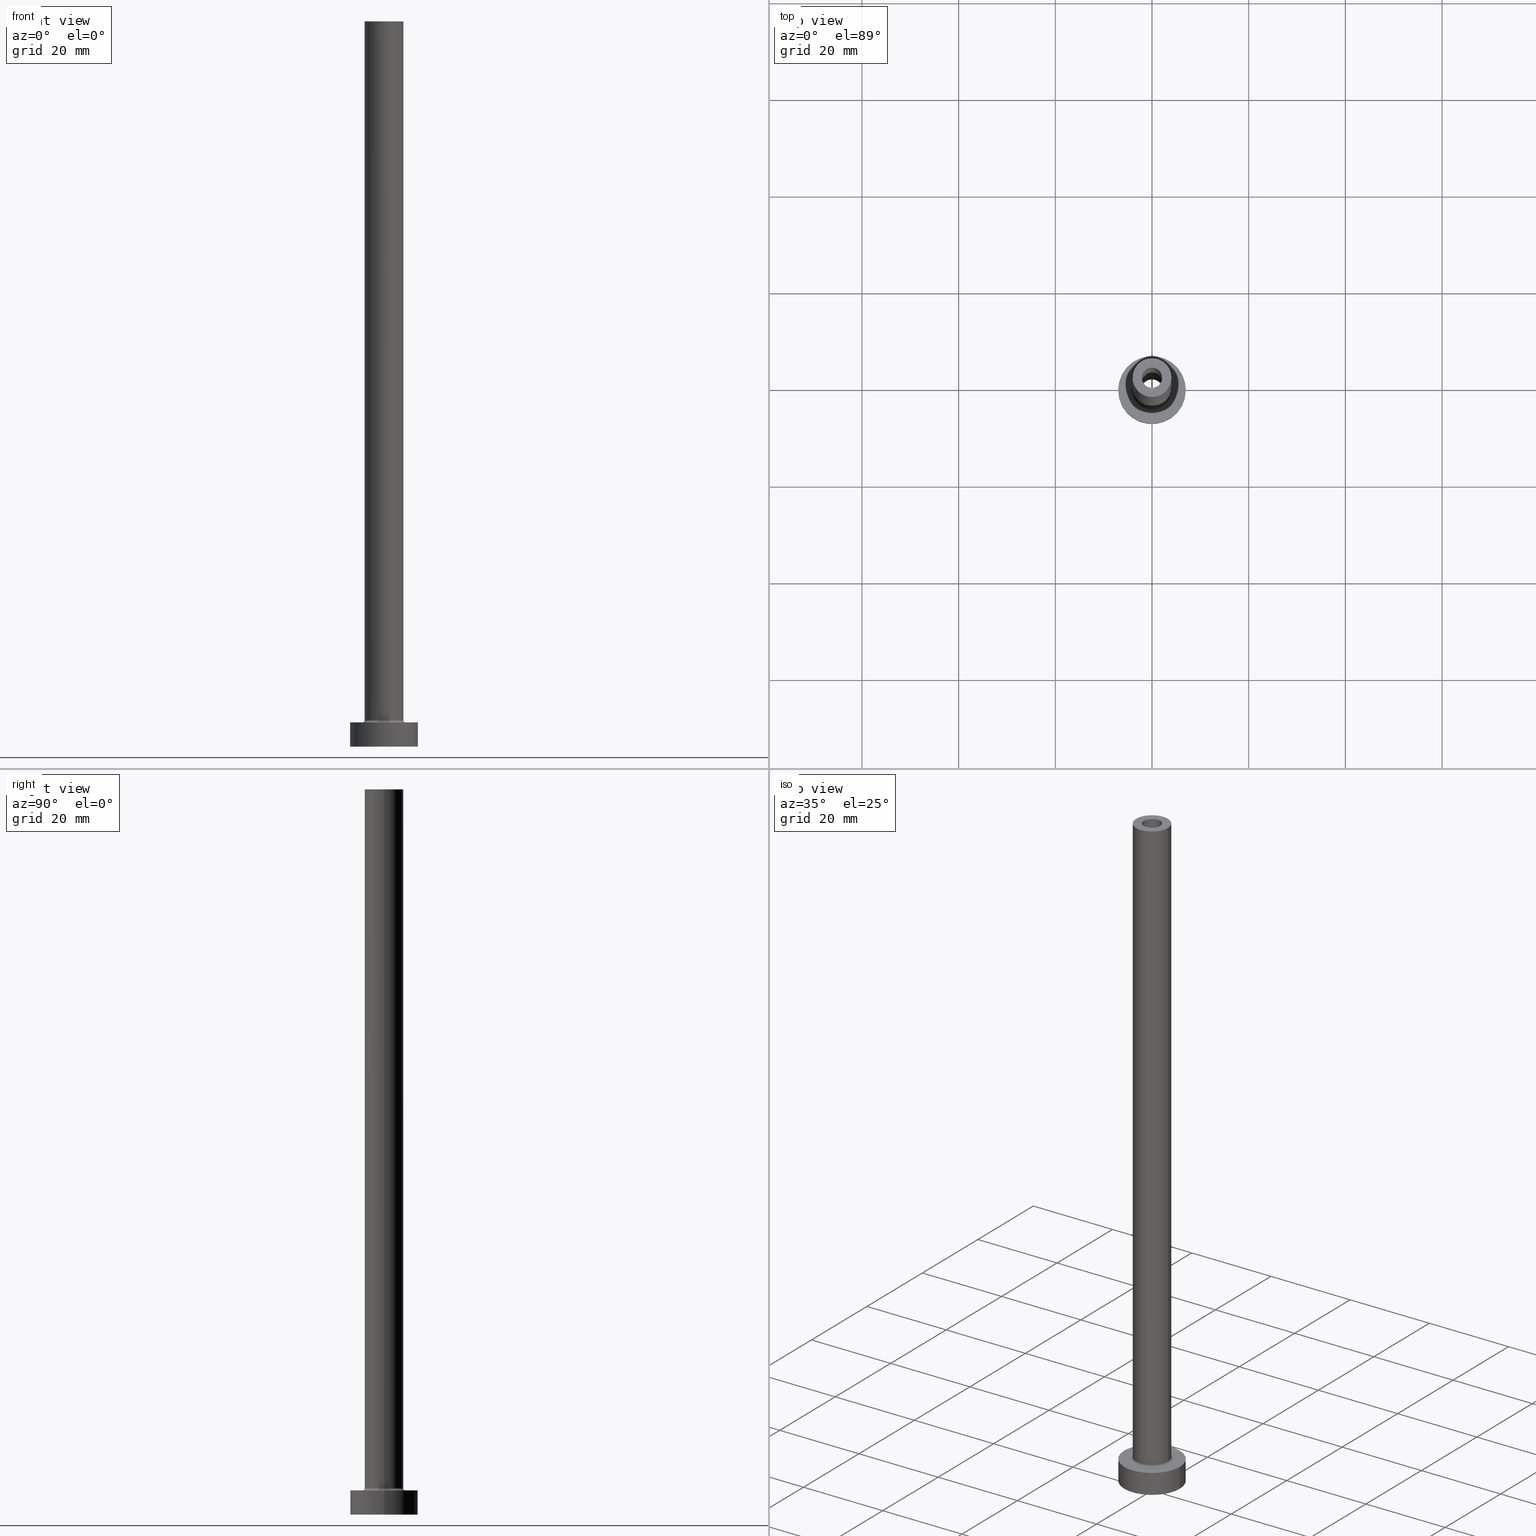
[diagram: canonical four-view strip — front | top / right | iso, engineering-drawing reading convention]
A machine part, canonical four-view strip (front | top / right | iso — engineering-drawing reading convention). The complete STEP part file that produces these views, byte-faithful:
ISO-10303-21;
HEADER;
FILE_DESCRIPTION (( 'STEP AP203' ),
    '1' );
FILE_NAME ('745d.STEP',
    '2023-02-13T11:07:23',
    ( '' ),
    ( '' ),
    'SwSTEP 2.0',
    'SolidWorks 2019',
    '' );
FILE_SCHEMA (( 'CONFIG_CONTROL_DESIGN' ));
ENDSEC;

DATA;
#1 = DATE_TIME_ROLE ( 'classification_date' ) ;
#2 = AXIS2_PLACEMENT_3D ( 'NONE', #166, #381, #138 ) ;
#3 = EDGE_LOOP ( 'NONE', ( #385, #241 ) ) ;
#4 = EDGE_CURVE ( 'NONE', #44, #455, #233, .T. ) ;
#5 = DIRECTION ( 'NONE',  ( 1.000000000000000000, 0.000000000000000000, 0.000000000000000000 ) ) ;
#6 = VERTEX_POINT ( 'NONE', #91 ) ;
#7 =( NAMED_UNIT ( * ) PLANE_ANGLE_UNIT ( ) SI_UNIT ( $, .RADIAN. ) );
#8 = VERTEX_POINT ( 'NONE', #327 ) ;
#9 = CARTESIAN_POINT ( 'NONE',  ( 0.000000000000000000, 0.000000000000000000, 150.0000000000000000 ) ) ;
#10 = CC_DESIGN_DATE_AND_TIME_ASSIGNMENT ( #257, #1, ( #396 ) ) ;
#11 = CIRCLE ( 'NONE', #32, 4.500000000000000888 ) ;
#12 = ADVANCED_FACE ( 'NONE', ( #187, #361 ), #405, .F. ) ;
#13 = FACE_OUTER_BOUND ( 'NONE', #387, .T. ) ;
#14 = ORIENTED_EDGE ( 'NONE', *, *, #232, .F. ) ;
#15 = DIRECTION ( 'NONE',  ( 1.000000000000000000, 0.000000000000000000, 0.000000000000000000 ) ) ;
#16 = FACE_OUTER_BOUND ( 'NONE', #457, .T. ) ;
#17 = DIRECTION ( 'NONE',  ( 0.000000000000000000, 0.000000000000000000, 1.000000000000000000 ) ) ;
#18 = PERSON_AND_ORGANIZATION ( #267, #237 ) ;
#19 = CC_DESIGN_PERSON_AND_ORGANIZATION_ASSIGNMENT ( #270, #341, ( #103 ) ) ;
#20 = AXIS2_PLACEMENT_3D ( 'NONE', #54, #259, #94 ) ;
#21 = DIRECTION ( 'NONE',  ( 1.000000000000000000, 0.000000000000000000, 0.000000000000000000 ) ) ;
#22 = ADVANCED_FACE ( 'NONE', ( #371, #439 ), #369, .T. ) ;
#23 = EDGE_LOOP ( 'NONE', ( #342, #208, #350, #320 ) ) ;
#24 = DIRECTION ( 'NONE',  ( -1.000000000000000000, 0.000000000000000000, 0.000000000000000000 ) ) ;
#25 = CIRCLE ( 'NONE', #57, 4.000000000000000000 ) ;
#26 = CIRCLE ( 'NONE', #137, 2.100000000000000089 ) ;
#27 = APPROVAL_PERSON_ORGANIZATION ( #456, #450, #68 ) ;
#28 = APPROVAL_DATE_TIME ( #132, #302 ) ;
#29 = DIRECTION ( 'NONE',  ( -1.000000000000000000, 1.224646799147351482E-16, 0.000000000000000000 ) ) ;
#30 = ORIENTED_EDGE ( 'NONE', *, *, #135, .T. ) ;
#31 = CIRCLE ( 'NONE', #206, 7.000000000000000000 ) ;
#32 = AXIS2_PLACEMENT_3D ( 'NONE', #125, #255, #86 ) ;
#33 = EDGE_LOOP ( 'NONE', ( #171, #289 ) ) ;
#34 = AXIS2_PLACEMENT_3D ( 'NONE', #309, #454, #274 ) ;
#35 = CARTESIAN_POINT ( 'NONE',  ( -4.000000000000000000, 0.000000000000000000, 5.500000000000005329 ) ) ;
#36 = EDGE_LOOP ( 'NONE', ( #248, #424, #164, #316 ) ) ;
#37 = CARTESIAN_POINT ( 'NONE',  ( -2.100000000000000089, 0.000000000000000000, 150.0000000000000000 ) ) ;
#38 = DIRECTION ( 'NONE',  ( 1.000000000000000000, 0.000000000000000000, -0.000000000000000000 ) ) ;
#39 = EDGE_LOOP ( 'NONE', ( #14, #322, #161, #173 ) ) ;
#40 = EDGE_CURVE ( 'NONE', #64, #382, #31, .T. ) ;
#41 = APPROVAL_DATE_TIME ( #75, #344 ) ;
#42 = APPROVAL_PERSON_ORGANIZATION ( #264, #302, #372 ) ;
#43 =( LENGTH_UNIT ( ) NAMED_UNIT ( * ) SI_UNIT ( .MILLI., .METRE. ) );
#44 = VERTEX_POINT ( 'NONE', #297 ) ;
#45 = DIRECTION ( 'NONE',  ( 0.000000000000000000, 0.000000000000000000, -1.000000000000000000 ) ) ;
#46 = CALENDAR_DATE ( 2023, 13, 2 ) ;
#47 = FACE_OUTER_BOUND ( 'NONE', #389, .T. ) ;
#48 = CYLINDRICAL_SURFACE ( 'NONE', #63, 2.250000000000000000 ) ;
#49 = AXIS2_PLACEMENT_3D ( 'NONE', #375, #58, #172 ) ;
#50 =( GEOMETRIC_REPRESENTATION_CONTEXT ( 3 ) GLOBAL_UNCERTAINTY_ASSIGNED_CONTEXT ( ( #284 ) ) GLOBAL_UNIT_ASSIGNED_CONTEXT ( ( #43, #7, #178 ) ) REPRESENTATION_CONTEXT ( 'NONE', 'WORKASPACE' ) );
#51 = DIRECTION ( 'NONE',  ( -0.000000000000000000, -0.000000000000000000, -1.000000000000000000 ) ) ;
#52 = DIRECTION ( 'NONE',  ( -0.000000000000000000, -0.000000000000000000, -1.000000000000000000 ) ) ;
#53 = ORIENTED_EDGE ( 'NONE', *, *, #321, .T. ) ;
#54 = CARTESIAN_POINT ( 'NONE',  ( 0.000000000000000000, 0.000000000000000000, 150.0000000000000000 ) ) ;
#55 = ORIENTED_EDGE ( 'NONE', *, *, #160, .F. ) ;
#56 = AXIS2_PLACEMENT_3D ( 'NONE', #180, #408, #152 ) ;
#57 = AXIS2_PLACEMENT_3D ( 'NONE', #214, #179, #5 ) ;
#58 = DIRECTION ( 'NONE',  ( 0.000000000000000000, -1.000000000000000000, 0.000000000000000000 ) ) ;
#59 = DIRECTION ( 'NONE',  ( -1.000000000000000000, 0.000000000000000000, 0.000000000000000000 ) ) ;
#60 = EDGE_CURVE ( 'NONE', #455, #44, #11, .T. ) ;
#61 = VERTEX_POINT ( 'NONE', #93 ) ;
#62 = DIRECTION ( 'NONE',  ( 0.000000000000000000, 0.000000000000000000, -1.000000000000000000 ) ) ;
#63 = AXIS2_PLACEMENT_3D ( 'NONE', #402, #245, #85 ) ;
#64 = VERTEX_POINT ( 'NONE', #191 ) ;
#65 = EDGE_CURVE ( 'NONE', #261, #8, #290, .T. ) ;
#66 = LINE ( 'NONE', #165, #292 ) ;
#67 = FACE_OUTER_BOUND ( 'NONE', #33, .T. ) ;
#68 = APPROVAL_ROLE ( '' ) ;
#69 = ORIENTED_EDGE ( 'NONE', *, *, #273, .T. ) ;
#70 = CARTESIAN_POINT ( 'NONE',  ( 0.000000000000000000, 0.000000000000000000, 150.0000000000000000 ) ) ;
#71 = ORIENTED_EDGE ( 'NONE', *, *, #356, .T. ) ;
#72 = DIRECTION ( 'NONE',  ( 1.000000000000000000, 0.000000000000000000, 0.000000000000000000 ) ) ;
#73 = VERTEX_POINT ( 'NONE', #84 ) ;
#74 = CARTESIAN_POINT ( 'NONE',  ( 0.000000000000000000, 0.000000000000000000, 150.0000000000000000 ) ) ;
#75 = DATE_AND_TIME ( #388, #283 ) ;
#76 = ORIENTED_EDGE ( 'NONE', *, *, #379, .F. ) ;
#77 = PERSON_AND_ORGANIZATION_ROLE ( 'creator' ) ;
#78 = VERTEX_POINT ( 'NONE', #258 ) ;
#79 = ADVANCED_FACE ( 'NONE', ( #329 ), #183, .T. ) ;
#80 = LOCAL_TIME ( 12, 7, 23.00000000000000000, #453 ) ;
#81 = CARTESIAN_POINT ( 'NONE',  ( 0.000000000000000000, 0.000000000000000000, 0.000000000000000000 ) ) ;
#82 = CC_DESIGN_PERSON_AND_ORGANIZATION_ASSIGNMENT ( #18, #157, ( #277 ) ) ;
#83 = APPROVAL_DATE_TIME ( #399, #450 ) ;
#84 = CARTESIAN_POINT ( 'NONE',  ( -4.000000000000000000, 0.000000000000000000, 150.0000000000000000 ) ) ;
#85 = DIRECTION ( 'NONE',  ( -1.000000000000000000, 0.000000000000000000, 0.000000000000000000 ) ) ;
#86 = DIRECTION ( 'NONE',  ( 1.000000000000000000, 0.000000000000000000, 0.000000000000000000 ) ) ;
#87 = LINE ( 'NONE', #435, #433 ) ;
#88 = VECTOR ( 'NONE', #431, 1000.000000000000000 ) ;
#89 = VECTOR ( 'NONE', #123, 1000.000000000000000 ) ;
#90 = ADVANCED_FACE ( 'NONE', ( #278, #67 ), #423, .T. ) ;
#91 = CARTESIAN_POINT ( 'NONE',  ( -2.100000000000000089, 0.000000000000000000, 105.0000000000000000 ) ) ;
#92 = CYLINDRICAL_SURFACE ( 'NONE', #20, 2.100000000000000089 ) ;
#93 = CARTESIAN_POINT ( 'NONE',  ( 4.000000000000000000, 4.898587196589412829E-16, 150.0000000000000000 ) ) ;
#94 = DIRECTION ( 'NONE',  ( -1.000000000000000000, 0.000000000000000000, 0.000000000000000000 ) ) ;
#95 = DIRECTION ( 'NONE',  ( -1.000000000000000000, 0.000000000000000000, 0.000000000000000000 ) ) ;
#96 = EDGE_CURVE ( 'NONE', #133, #455, #129, .T. ) ;
#97 = CC_DESIGN_APPROVAL ( #302, ( #103 ) ) ;
#98 = ORIENTED_EDGE ( 'NONE', *, *, #135, .F. ) ;
#99 = DIRECTION ( 'NONE',  ( 1.000000000000000000, 0.000000000000000000, 0.000000000000000000 ) ) ;
#100 = VECTOR ( 'NONE', #107, 1000.000000000000000 ) ;
#101 = COORDINATED_UNIVERSAL_TIME_OFFSET ( 1, 0, .AHEAD. ) ;
#102 = DESIGN_CONTEXT ( 'detailed design', #365, 'design' ) ;
#103 = PRODUCT_DEFINITION ( 'NEZN�M�', '', #224, #102 ) ;
#104 = DIRECTION ( 'NONE',  ( -0.000000000000000000, -0.000000000000000000, -1.000000000000000000 ) ) ;
#105 = ORIENTED_EDGE ( 'NONE', *, *, #422, .F. ) ;
#106 = ADVANCED_FACE ( 'NONE', ( #201 ), #384, .T. ) ;
#107 = DIRECTION ( 'NONE',  ( 0.000000000000000000, 0.000000000000000000, -1.000000000000000000 ) ) ;
#108 = ORIENTED_EDGE ( 'NONE', *, *, #60, .T. ) ;
#109 = CC_DESIGN_APPROVAL ( #450, ( #224 ) ) ;
#110 = FACE_OUTER_BOUND ( 'NONE', #291, .T. ) ;
#111 = ORIENTED_EDGE ( 'NONE', *, *, #4, .F. ) ;
#112 = EDGE_CURVE ( 'NONE', #360, #44, #156, .T. ) ;
#113 = ORIENTED_EDGE ( 'NONE', *, *, #4, .T. ) ;
#114 = VERTEX_POINT ( 'NONE', #425 ) ;
#115 = CARTESIAN_POINT ( 'NONE',  ( -2.250000000000000000, 0.000000000000000000, 0.000000000000000000 ) ) ;
#116 = CARTESIAN_POINT ( 'NONE',  ( 0.000000000000000000, 0.000000000000000000, 0.000000000000000000 ) ) ;
#117 = FACE_OUTER_BOUND ( 'NONE', #36, .T. ) ;
#118 = DIRECTION ( 'NONE',  ( 0.000000000000000000, 0.000000000000000000, 1.000000000000000000 ) ) ;
#119 = COORDINATED_UNIVERSAL_TIME_OFFSET ( 1, 0, .AHEAD. ) ;
#120 = ORIENTED_EDGE ( 'NONE', *, *, #65, .F. ) ;
#121 = CARTESIAN_POINT ( 'NONE',  ( 2.100000000000000089, 2.571758278209441464E-16, 150.0000000000000000 ) ) ;
#122 = ADVANCED_FACE ( 'NONE', ( #461 ), #310, .F. ) ;
#123 = DIRECTION ( 'NONE',  ( -0.000000000000000000, -0.000000000000000000, -1.000000000000000000 ) ) ;
#124 = LOCAL_TIME ( 12, 7, 23.00000000000000000, #101 ) ;
#125 = CARTESIAN_POINT ( 'NONE',  ( 0.000000000000000000, 0.000000000000000000, 5.000000000000000000 ) ) ;
#126 = LINE ( 'NONE', #437, #312 ) ;
#127 = DIRECTION ( 'NONE',  ( -0.000000000000000000, -0.000000000000000000, -1.000000000000000000 ) ) ;
#128 = EDGE_CURVE ( 'NONE', #114, #351, #192, .T. ) ;
#129 = CIRCLE ( 'NONE', #234, 0.5000000000000004441 ) ;
#130 = AXIS2_PLACEMENT_3D ( 'NONE', #151, #225, #193 ) ;
#131 = ADVANCED_BREP_SHAPE_REPRESENTATION ( '745d', ( #147, #300 ), #50 ) ;
#132 = DATE_AND_TIME ( #202, #80 ) ;
#133 = VERTEX_POINT ( 'NONE', #35 ) ;
#134 = DIRECTION ( 'NONE',  ( 0.000000000000000000, 0.000000000000000000, 1.000000000000000000 ) ) ;
#135 = EDGE_CURVE ( 'NONE', #346, #8, #417, .T. ) ;
#136 = CIRCLE ( 'NONE', #215, 2.100000000000000089 ) ;
#137 = AXIS2_PLACEMENT_3D ( 'NONE', #271, #306, #197 ) ;
#138 = DIRECTION ( 'NONE',  ( -1.000000000000000000, 0.000000000000000000, 0.000000000000000000 ) ) ;
#139 = ORIENTED_EDGE ( 'NONE', *, *, #112, .F. ) ;
#140 = PERSON_AND_ORGANIZATION ( #267, #237 ) ;
#141 = EDGE_LOOP ( 'NONE', ( #222, #148 ) ) ;
#142 = EDGE_CURVE ( 'NONE', #351, #114, #251, .T. ) ;
#143 = ORIENTED_EDGE ( 'NONE', *, *, #321, .F. ) ;
#144 = ORIENTED_EDGE ( 'NONE', *, *, #356, .F. ) ;
#145 = CARTESIAN_POINT ( 'NONE',  ( -4.000000000000000000, 0.000000000000000000, 150.0000000000000000 ) ) ;
#146 = CLOSED_SHELL ( 'NONE', ( #246, #403, #307, #414, #106, #79, #22, #332, #288, #90, #268, #204, #12, #122 ) ) ;
#147 = MANIFOLD_SOLID_BREP ( 'Odebrat vysunut�m4', #146 ) ;
#148 = ORIENTED_EDGE ( 'NONE', *, *, #349, .F. ) ;
#149 = CARTESIAN_POINT ( 'NONE',  ( 0.000000000000000000, 0.000000000000000000, 111.3639610306789223 ) ) ;
#150 = CC_DESIGN_SECURITY_CLASSIFICATION ( #396, ( #224 ) ) ;
#151 = CARTESIAN_POINT ( 'NONE',  ( 0.000000000000000000, 0.000000000000000000, 5.500000000000005329 ) ) ;
#152 = DIRECTION ( 'NONE',  ( 1.000000000000000000, 0.000000000000000000, 0.000000000000000000 ) ) ;
#153 = ORIENTED_EDGE ( 'NONE', *, *, #226, .F. ) ;
#154 = CC_DESIGN_DATE_AND_TIME_ASSIGNMENT ( #311, #420, ( #103 ) ) ;
#155 = DIRECTION ( 'NONE',  ( -0.000000000000000000, -0.000000000000000000, -1.000000000000000000 ) ) ;
#156 = CIRCLE ( 'NONE', #49, 0.5000000000000004441 ) ;
#157 = PERSON_AND_ORGANIZATION_ROLE ( 'design_owner' ) ;
#158 = AXIS2_PLACEMENT_3D ( 'NONE', #442, #263, #407 ) ;
#159 = ORIENTED_EDGE ( 'NONE', *, *, #182, .F. ) ;
#160 = EDGE_CURVE ( 'NONE', #382, #64, #357, .T. ) ;
#161 = ORIENTED_EDGE ( 'NONE', *, *, #422, .T. ) ;
#162 = AXIS2_PLACEMENT_3D ( 'NONE', #272, #347, #21 ) ;
#163 = CARTESIAN_POINT ( 'NONE',  ( 0.000000000000000000, 0.000000000000000000, 150.0000000000000000 ) ) ;
#164 = ORIENTED_EDGE ( 'NONE', *, *, #112, .T. ) ;
#165 = CARTESIAN_POINT ( 'NONE',  ( -2.100000000000000089, 0.000000000000000000, 150.0000000000000000 ) ) ;
#166 = CARTESIAN_POINT ( 'NONE',  ( 0.000000000000000000, 0.000000000000000000, 5.000000000000000000 ) ) ;
#167 = CALENDAR_DATE ( 2023, 13, 2 ) ;
#168 = ORIENTED_EDGE ( 'NONE', *, *, #65, .T. ) ;
#169 = AXIS2_PLACEMENT_3D ( 'NONE', #220, #325, #189 ) ;
#170 = EDGE_LOOP ( 'NONE', ( #308, #440 ) ) ;
#171 = ORIENTED_EDGE ( 'NONE', *, *, #199, .T. ) ;
#172 = DIRECTION ( 'NONE',  ( 0.000000000000000000, 0.000000000000000000, -1.000000000000000000 ) ) ;
#173 = ORIENTED_EDGE ( 'NONE', *, *, #40, .T. ) ;
#174 = DIRECTION ( 'NONE',  ( 0.000000000000000000, 0.000000000000000000, 1.000000000000000000 ) ) ;
#175 = ORIENTED_EDGE ( 'NONE', *, *, #443, .T. ) ;
#176 = EDGE_CURVE ( 'NONE', #334, #239, #395, .T. ) ;
#177 = EDGE_LOOP ( 'NONE', ( #446, #426, #153, #211 ) ) ;
#178 =( NAMED_UNIT ( * ) SI_UNIT ( $, .STERADIAN. ) SOLID_ANGLE_UNIT ( ) );
#179 = DIRECTION ( 'NONE',  ( 0.000000000000000000, 0.000000000000000000, 1.000000000000000000 ) ) ;
#180 = CARTESIAN_POINT ( 'NONE',  ( 0.000000000000000000, 0.000000000000000000, 5.000000000000000000 ) ) ;
#181 = LINE ( 'NONE', #368, #89 ) ;
#182 = EDGE_CURVE ( 'NONE', #133, #360, #25, .T. ) ;
#183 = CYLINDRICAL_SURFACE ( 'NONE', #2, 7.000000000000000000 ) ;
#184 = AXIS2_PLACEMENT_3D ( 'NONE', #256, #51, #15 ) ;
#185 = FACE_OUTER_BOUND ( 'NONE', #177, .T. ) ;
#186 = PERSON_AND_ORGANIZATION ( #267, #237 ) ;
#187 = FACE_BOUND ( 'NONE', #3, .T. ) ;
#188 = FACE_BOUND ( 'NONE', #459, .T. ) ;
#189 = DIRECTION ( 'NONE',  ( 1.000000000000000000, 0.000000000000000000, -0.000000000000000000 ) ) ;
#190 = DIRECTION ( 'NONE',  ( 0.000000000000000000, 0.000000000000000000, 1.000000000000000000 ) ) ;
#191 = CARTESIAN_POINT ( 'NONE',  ( -7.000000000000000000, 0.000000000000000000, 0.000000000000000000 ) ) ;
#192 = CIRCLE ( 'NONE', #162, 7.000000000000000000 ) ;
#193 = DIRECTION ( 'NONE',  ( 1.000000000000000000, 0.000000000000000000, 0.000000000000000000 ) ) ;
#194 = CC_DESIGN_PERSON_AND_ORGANIZATION_ASSIGNMENT ( #354, #212, ( #396 ) ) ;
#195 = CC_DESIGN_APPROVAL ( #344, ( #396 ) ) ;
#196 = DIRECTION ( 'NONE',  ( 1.000000000000000000, 0.000000000000000000, 0.000000000000000000 ) ) ;
#197 = DIRECTION ( 'NONE',  ( 1.000000000000000000, 0.000000000000000000, 0.000000000000000000 ) ) ;
#198 = DIRECTION ( 'NONE',  ( 0.000000000000000000, 0.000000000000000000, 1.000000000000000000 ) ) ;
#199 = EDGE_CURVE ( 'NONE', #73, #61, #282, .T. ) ;
#200 = AXIS2_PLACEMENT_3D ( 'NONE', #400, #127, #366 ) ;
#201 = FACE_OUTER_BOUND ( 'NONE', #244, .T. ) ;
#202 = CALENDAR_DATE ( 2023, 13, 2 ) ;
#203 = ORIENTED_EDGE ( 'NONE', *, *, #330, .F. ) ;
#204 = ADVANCED_FACE ( 'NONE', ( #110 ), #48, .F. ) ;
#205 = EDGE_LOOP ( 'NONE', ( #76, #53, #69, #203 ) ) ;
#206 = AXIS2_PLACEMENT_3D ( 'NONE', #116, #17, #448 ) ;
#207 = DIRECTION ( 'NONE',  ( 0.000000000000000000, 0.000000000000000000, -1.000000000000000000 ) ) ;
#208 = ORIENTED_EDGE ( 'NONE', *, *, #349, .T. ) ;
#209 = APPLICATION_PROTOCOL_DEFINITION ( 'international standard', 'config_control_design', 1994, #338 ) ;
#210 = CARTESIAN_POINT ( 'NONE',  ( 0.000000000000000000, 0.000000000000000000, 0.000000000000000000 ) ) ;
#211 = ORIENTED_EDGE ( 'NONE', *, *, #436, .F. ) ;
#212 = PERSON_AND_ORGANIZATION_ROLE ( 'classification_officer' ) ;
#213 = ORIENTED_EDGE ( 'NONE', *, *, #40, .F. ) ;
#214 = CARTESIAN_POINT ( 'NONE',  ( 0.000000000000000000, 0.000000000000000000, 5.500000000000005329 ) ) ;
#215 = AXIS2_PLACEMENT_3D ( 'NONE', #353, #174, #287 ) ;
#216 = ORIENTED_EDGE ( 'NONE', *, *, #330, .T. ) ;
#217 = CIRCLE ( 'NONE', #230, 2.250000000000000000 ) ;
#218 = ORIENTED_EDGE ( 'NONE', *, *, #182, .T. ) ;
#219 = PERSON_AND_ORGANIZATION ( #267, #237 ) ;
#220 = CARTESIAN_POINT ( 'NONE',  ( 0.000000000000000000, 0.000000000000000000, 105.0000000000000000 ) ) ;
#221 = DIRECTION ( 'NONE',  ( 0.000000000000000000, 0.000000000000000000, -1.000000000000000000 ) ) ;
#222 = ORIENTED_EDGE ( 'NONE', *, *, #176, .F. ) ;
#223 = AXIS2_PLACEMENT_3D ( 'NONE', #210, #266, #196 ) ;
#224 = PRODUCT_DEFINITION_FORMATION_WITH_SPECIFIED_SOURCE ( 'LIBOVOLN�', '', #277, .NOT_KNOWN. ) ;
#225 = DIRECTION ( 'NONE',  ( 0.000000000000000000, 0.000000000000000000, 1.000000000000000000 ) ) ;
#226 = EDGE_CURVE ( 'NONE', #6, #430, #136, .T. ) ;
#227 = FACE_OUTER_BOUND ( 'NONE', #421, .T. ) ;
#228 = AXIS2_PLACEMENT_3D ( 'NONE', #434, #363, #331 ) ;
#229 = CIRCLE ( 'NONE', #376, 4.000000000000000000 ) ;
#230 = AXIS2_PLACEMENT_3D ( 'NONE', #451, #198, #343 ) ;
#231 = EDGE_LOOP ( 'NONE', ( #113, #108 ) ) ;
#232 = EDGE_CURVE ( 'NONE', #114, #382, #429, .T. ) ;
#233 = CIRCLE ( 'NONE', #56, 4.500000000000000888 ) ;
#234 = AXIS2_PLACEMENT_3D ( 'NONE', #279, #345, #29 ) ;
#235 = ORIENTED_EDGE ( 'NONE', *, *, #232, .T. ) ;
#236 = LINE ( 'NONE', #304, #427 ) ;
#237 = ORGANIZATION ( 'NEUR�EN�', 'NEUR�EN�', '' ) ;
#238 = APPROVAL_STATUS ( 'not_yet_approved' ) ;
#239 = VERTEX_POINT ( 'NONE', #121 ) ;
#240 = DIRECTION ( 'NONE',  ( -1.000000000000000000, 0.000000000000000000, 0.000000000000000000 ) ) ;
#241 = ORIENTED_EDGE ( 'NONE', *, *, #412, .T. ) ;
#242 = AXIS2_PLACEMENT_3D ( 'NONE', #458, #104, #240 ) ;
#243 = DIRECTION ( 'NONE',  ( 0.000000000000000000, 0.000000000000000000, 1.000000000000000000 ) ) ;
#244 = EDGE_LOOP ( 'NONE', ( #314, #235, #428, #105 ) ) ;
#245 = DIRECTION ( 'NONE',  ( 0.000000000000000000, 0.000000000000000000, -1.000000000000000000 ) ) ;
#246 = ADVANCED_FACE ( 'NONE', ( #185 ), #92, .F. ) ;
#247 = APPROVAL_ROLE ( '' ) ;
#248 = ORIENTED_EDGE ( 'NONE', *, *, #96, .F. ) ;
#249 = CALENDAR_DATE ( 2023, 13, 2 ) ;
#250 = ORIENTED_EDGE ( 'NONE', *, *, #409, .T. ) ;
#251 = CIRCLE ( 'NONE', #335, 7.000000000000000000 ) ;
#252 = DIRECTION ( 'NONE',  ( 1.000000000000000000, 0.000000000000000000, 0.000000000000000000 ) ) ;
#253 = EDGE_CURVE ( 'NONE', #239, #430, #126, .T. ) ;
#254 = CARTESIAN_POINT ( 'NONE',  ( 0.000000000000000000, 0.000000000000000000, 150.0000000000000000 ) ) ;
#255 = DIRECTION ( 'NONE',  ( -0.000000000000000000, -0.000000000000000000, -1.000000000000000000 ) ) ;
#256 = CARTESIAN_POINT ( 'NONE',  ( 0.000000000000000000, 0.000000000000000000, 0.000000000000000000 ) ) ;
#257 = DATE_AND_TIME ( #249, #367 ) ;
#258 = CARTESIAN_POINT ( 'NONE',  ( -2.250000000000000000, 0.000000000000000000, 105.0000000000000000 ) ) ;
#259 = DIRECTION ( 'NONE',  ( 0.000000000000000000, 0.000000000000000000, -1.000000000000000000 ) ) ;
#260 = AXIS2_PLACEMENT_3D ( 'NONE', #411, #337, #38 ) ;
#261 = VERTEX_POINT ( 'NONE', #115 ) ;
#262 = AXIS2_PLACEMENT_3D ( 'NONE', #70, #207, #95 ) ;
#263 = DIRECTION ( 'NONE',  ( 0.000000000000000000, 0.000000000000000000, 1.000000000000000000 ) ) ;
#264 = PERSON_AND_ORGANIZATION ( #267, #237 ) ;
#265 = CARTESIAN_POINT ( 'NONE',  ( 0.000000000000000000, 0.000000000000000000, 5.500000000000005329 ) ) ;
#266 = DIRECTION ( 'NONE',  ( 0.000000000000000000, 0.000000000000000000, 1.000000000000000000 ) ) ;
#267 = PERSON ( 'NEUR�EN�', 'NEUR�EN�', 'NEUR�EN�', ('NEUR�EN�'), ('NEUR�EN�'), ('NEUR�EN�') ) ;
#268 = ADVANCED_FACE ( 'NONE', ( #117 ), #317, .F. ) ;
#269 = PRODUCT_DEFINITION_SHAPE ( 'NONE', 'NONE',  #103 ) ;
#270 = PERSON_AND_ORGANIZATION ( #267, #237 ) ;
#271 = CARTESIAN_POINT ( 'NONE',  ( 0.000000000000000000, 0.000000000000000000, 105.0000000000000000 ) ) ;
#272 = CARTESIAN_POINT ( 'NONE',  ( 0.000000000000000000, 0.000000000000000000, 5.000000000000000000 ) ) ;
#273 = EDGE_CURVE ( 'NONE', #360, #133, #229, .T. ) ;
#274 = DIRECTION ( 'NONE',  ( 1.000000000000000000, 0.000000000000000000, 0.000000000000000000 ) ) ;
#275 = CIRCLE ( 'NONE', #340, 4.000000000000000000 ) ;
#276 = CC_DESIGN_PERSON_AND_ORGANIZATION_ASSIGNMENT ( #219, #77, ( #224 ) ) ;
#277 = PRODUCT ( '745d', '745d', '', ( #391 ) ) ;
#278 = FACE_BOUND ( 'NONE', #141, .T. ) ;
#279 = CARTESIAN_POINT ( 'NONE',  ( -4.500000000000000888, 5.510910596163089556E-16, 5.500000000000005329 ) ) ;
#280 = ORIENTED_EDGE ( 'NONE', *, *, #128, .T. ) ;
#281 = DIRECTION ( 'NONE',  ( 1.000000000000000000, 0.000000000000000000, 0.000000000000000000 ) ) ;
#282 = CIRCLE ( 'NONE', #299, 4.000000000000000000 ) ;
#283 = LOCAL_TIME ( 12, 7, 23.00000000000000000, #319 ) ;
#284 = UNCERTAINTY_MEASURE_WITH_UNIT (LENGTH_MEASURE( 1.000000000000000082E-05 ), #43, 'distance_accuracy_value', 'NONE');
#285 = SHAPE_DEFINITION_REPRESENTATION ( #269, #131 ) ;
#286 = EDGE_LOOP ( 'NONE', ( #377, #280 ) ) ;
#287 = DIRECTION ( 'NONE',  ( 1.000000000000000000, 0.000000000000000000, 0.000000000000000000 ) ) ;
#288 = ADVANCED_FACE ( 'NONE', ( #227 ), #374, .T. ) ;
#289 = ORIENTED_EDGE ( 'NONE', *, *, #379, .T. ) ;
#290 = CIRCLE ( 'NONE', #200, 2.250000000000000000 ) ;
#291 = EDGE_LOOP ( 'NONE', ( #98, #250, #315, #168 ) ) ;
#292 = VECTOR ( 'NONE', #62, 1000.000000000000000 ) ;
#293 = DIRECTION ( 'NONE',  ( 0.000000000000000000, 0.000000000000000000, -1.000000000000000000 ) ) ;
#294 = COORDINATED_UNIVERSAL_TIME_OFFSET ( 1, 0, .AHEAD. ) ;
#295 = CARTESIAN_POINT ( 'NONE',  ( 0.000000000000000000, 0.000000000000000000, 150.0000000000000000 ) ) ;
#296 = PLANE ( 'NONE',  #158 ) ;
#297 = CARTESIAN_POINT ( 'NONE',  ( 4.500000000000000888, 0.000000000000000000, 5.000000000000002665 ) ) ;
#298 = APPLICATION_PROTOCOL_DEFINITION ( 'international standard', 'config_control_design', 1994, #365 ) ;
#299 = AXIS2_PLACEMENT_3D ( 'NONE', #9, #118, #281 ) ;
#300 = AXIS2_PLACEMENT_3D ( 'NONE', #81, #352, #323 ) ;
#301 = DIRECTION ( 'NONE',  ( 0.000000000000000000, 0.000000000000000000, 1.000000000000000000 ) ) ;
#302 = APPROVAL ( #303, 'NEUR�EN�' ) ;
#303 = APPROVAL_STATUS ( 'not_yet_approved' ) ;
#304 = CARTESIAN_POINT ( 'NONE',  ( -7.000000000000000000, 0.000000000000000000, 5.000000000000000000 ) ) ;
#305 = LOCAL_TIME ( 12, 7, 23.00000000000000000, #294 ) ;
#306 = DIRECTION ( 'NONE',  ( 0.000000000000000000, 0.000000000000000000, 1.000000000000000000 ) ) ;
#307 = ADVANCED_FACE ( 'NONE', ( #47 ), #445, .F. ) ;
#308 = ORIENTED_EDGE ( 'NONE', *, *, #443, .F. ) ;
#309 = CARTESIAN_POINT ( 'NONE',  ( 0.000000000000000000, 0.000000000000000000, 105.0000000000000000 ) ) ;
#310 = CYLINDRICAL_SURFACE ( 'NONE', #262, 2.100000000000000089 ) ;
#311 = DATE_AND_TIME ( #167, #124 ) ;
#312 = VECTOR ( 'NONE', #221, 1000.000000000000000 ) ;
#313 = AXIS2_PLACEMENT_3D ( 'NONE', #74, #390, #252 ) ;
#314 = ORIENTED_EDGE ( 'NONE', *, *, #128, .F. ) ;
#315 = ORIENTED_EDGE ( 'NONE', *, *, #373, .T. ) ;
#316 = ORIENTED_EDGE ( 'NONE', *, *, #60, .F. ) ;
#317 = TOROIDAL_SURFACE ( 'NONE', #432, 4.500000000000000888, 0.5000000000000000000 ) ;
#318 = CIRCLE ( 'NONE', #34, 2.250000000000000000 ) ;
#319 = COORDINATED_UNIVERSAL_TIME_OFFSET ( 1, 0, .AHEAD. ) ;
#320 = ORIENTED_EDGE ( 'NONE', *, *, #412, .F. ) ;
#321 = EDGE_CURVE ( 'NONE', #61, #360, #181, .T. ) ;
#322 = ORIENTED_EDGE ( 'NONE', *, *, #142, .F. ) ;
#323 = DIRECTION ( 'NONE',  ( 1.000000000000000000, 0.000000000000000000, 0.000000000000000000 ) ) ;
#324 = CARTESIAN_POINT ( 'NONE',  ( 7.000000000000000000, 8.572527594031473190E-16, 5.000000000000000000 ) ) ;
#325 = DIRECTION ( 'NONE',  ( 0.000000000000000000, 0.000000000000000000, 1.000000000000000000 ) ) ;
#326 = CARTESIAN_POINT ( 'NONE',  ( 7.000000000000000000, 8.572527594031473190E-16, 0.000000000000000000 ) ) ;
#327 = CARTESIAN_POINT ( 'NONE',  ( 2.250000000000000000, 2.755455298081544285E-16, 0.000000000000000000 ) ) ;
#328 = AXIS2_PLACEMENT_3D ( 'NONE', #254, #155, #398 ) ;
#329 = FACE_OUTER_BOUND ( 'NONE', #39, .T. ) ;
#330 = EDGE_CURVE ( 'NONE', #73, #133, #370, .T. ) ;
#331 = DIRECTION ( 'NONE',  ( 1.000000000000000000, 0.000000000000000000, -0.000000000000000000 ) ) ;
#332 = ADVANCED_FACE ( 'NONE', ( #188, #16 ), #296, .F. ) ;
#333 = DIRECTION ( 'NONE',  ( 1.000000000000000000, 0.000000000000000000, 0.000000000000000000 ) ) ;
#334 = VERTEX_POINT ( 'NONE', #37 ) ;
#335 = AXIS2_PLACEMENT_3D ( 'NONE', #383, #243, #72 ) ;
#336 = AXIS2_PLACEMENT_3D ( 'NONE', #149, #293, #24 ) ;
#337 = DIRECTION ( 'NONE',  ( 0.000000000000000000, 0.000000000000000000, 1.000000000000000000 ) ) ;
#338 = APPLICATION_CONTEXT ( 'configuration controlled 3d designs of mechanical parts and assemblies' ) ;
#339 = DIRECTION ( 'NONE',  ( -0.000000000000000000, -0.000000000000000000, -1.000000000000000000 ) ) ;
#340 = AXIS2_PLACEMENT_3D ( 'NONE', #295, #190, #441 ) ;
#341 = PERSON_AND_ORGANIZATION_ROLE ( 'creator' ) ;
#342 = ORIENTED_EDGE ( 'NONE', *, *, #253, .F. ) ;
#343 = DIRECTION ( 'NONE',  ( 1.000000000000000000, 0.000000000000000000, 0.000000000000000000 ) ) ;
#344 = APPROVAL ( #392, 'NEUR�EN�' ) ;
#345 = DIRECTION ( 'NONE',  ( 1.224646799147353207E-16, 1.000000000000000000, -0.000000000000000000 ) ) ;
#346 = VERTEX_POINT ( 'NONE', #460 ) ;
#347 = DIRECTION ( 'NONE',  ( 0.000000000000000000, 0.000000000000000000, 1.000000000000000000 ) ) ;
#348 = APPROVAL_PERSON_ORGANIZATION ( #140, #344, #247 ) ;
#349 = EDGE_CURVE ( 'NONE', #239, #334, #418, .T. ) ;
#350 = ORIENTED_EDGE ( 'NONE', *, *, #436, .T. ) ;
#351 = VERTEX_POINT ( 'NONE', #397 ) ;
#352 = DIRECTION ( 'NONE',  ( 0.000000000000000000, 0.000000000000000000, 1.000000000000000000 ) ) ;
#353 = CARTESIAN_POINT ( 'NONE',  ( 0.000000000000000000, 0.000000000000000000, 105.0000000000000000 ) ) ;
#354 = PERSON_AND_ORGANIZATION ( #267, #237 ) ;
#355 = ORIENTED_EDGE ( 'NONE', *, *, #199, .F. ) ;
#356 = EDGE_CURVE ( 'NONE', #8, #261, #386, .T. ) ;
#357 = CIRCLE ( 'NONE', #223, 7.000000000000000000 ) ;
#358 = VECTOR ( 'NONE', #52, 1000.000000000000000 ) ;
#359 = PERSON_AND_ORGANIZATION_ROLE ( 'design_supplier' ) ;
#360 = VERTEX_POINT ( 'NONE', #406 ) ;
#361 = FACE_OUTER_BOUND ( 'NONE', #170, .T. ) ;
#362 = PRODUCT_RELATED_PRODUCT_CATEGORY ( 'detail', '', ( #277 ) ) ;
#363 = DIRECTION ( 'NONE',  ( 0.000000000000000000, 0.000000000000000000, 1.000000000000000000 ) ) ;
#364 = DIRECTION ( 'NONE',  ( 0.000000000000000000, 0.000000000000000000, 1.000000000000000000 ) ) ;
#365 = APPLICATION_CONTEXT ( 'configuration controlled 3d designs of mechanical parts and assemblies' ) ;
#366 = DIRECTION ( 'NONE',  ( 1.000000000000000000, 0.000000000000000000, 0.000000000000000000 ) ) ;
#367 = LOCAL_TIME ( 12, 7, 23.00000000000000000, #119 ) ;
#368 = CARTESIAN_POINT ( 'NONE',  ( 4.000000000000000000, 4.898587196589412829E-16, 150.0000000000000000 ) ) ;
#369 = PLANE ( 'NONE',  #228 ) ;
#370 = LINE ( 'NONE', #145, #358 ) ;
#371 = FACE_BOUND ( 'NONE', #231, .T. ) ;
#372 = APPROVAL_ROLE ( '' ) ;
#373 = EDGE_CURVE ( 'NONE', #78, #261, #87, .T. ) ;
#374 = CYLINDRICAL_SURFACE ( 'NONE', #328, 4.000000000000000000 ) ;
#375 = CARTESIAN_POINT ( 'NONE',  ( 4.500000000000000888, 0.000000000000000000, 5.500000000000005329 ) ) ;
#376 = AXIS2_PLACEMENT_3D ( 'NONE', #401, #364, #333 ) ;
#377 = ORIENTED_EDGE ( 'NONE', *, *, #142, .T. ) ;
#378 = DIRECTION ( 'NONE',  ( -0.000000000000000000, -0.000000000000000000, -1.000000000000000000 ) ) ;
#379 = EDGE_CURVE ( 'NONE', #61, #73, #275, .T. ) ;
#380 = CARTESIAN_POINT ( 'NONE',  ( 0.000000000000000000, 0.000000000000000000, 150.0000000000000000 ) ) ;
#381 = DIRECTION ( 'NONE',  ( -0.000000000000000000, -0.000000000000000000, -1.000000000000000000 ) ) ;
#382 = VERTEX_POINT ( 'NONE', #326 ) ;
#383 = CARTESIAN_POINT ( 'NONE',  ( 0.000000000000000000, 0.000000000000000000, 5.000000000000000000 ) ) ;
#384 = CYLINDRICAL_SURFACE ( 'NONE', #242, 7.000000000000000000 ) ;
#385 = ORIENTED_EDGE ( 'NONE', *, *, #226, .T. ) ;
#386 = CIRCLE ( 'NONE', #184, 2.250000000000000000 ) ;
#387 = EDGE_LOOP ( 'NONE', ( #175, #30, #71, #415 ) ) ;
#388 = CALENDAR_DATE ( 2023, 13, 2 ) ;
#389 = EDGE_LOOP ( 'NONE', ( #159, #393, #111, #139 ) ) ;
#390 = DIRECTION ( 'NONE',  ( 0.000000000000000000, 0.000000000000000000, 1.000000000000000000 ) ) ;
#391 = MECHANICAL_CONTEXT ( 'NONE', #338, 'mechanical' ) ;
#392 = APPROVAL_STATUS ( 'not_yet_approved' ) ;
#393 = ORIENTED_EDGE ( 'NONE', *, *, #96, .T. ) ;
#394 = CC_DESIGN_PERSON_AND_ORGANIZATION_ASSIGNMENT ( #186, #359, ( #224 ) ) ;
#395 = CIRCLE ( 'NONE', #444, 2.100000000000000089 ) ;
#396 = SECURITY_CLASSIFICATION ( '', '', #438 ) ;
#397 = CARTESIAN_POINT ( 'NONE',  ( -7.000000000000000000, 0.000000000000000000, 5.000000000000000000 ) ) ;
#398 = DIRECTION ( 'NONE',  ( -1.000000000000000000, 0.000000000000000000, 0.000000000000000000 ) ) ;
#399 = DATE_AND_TIME ( #46, #305 ) ;
#400 = CARTESIAN_POINT ( 'NONE',  ( 0.000000000000000000, 0.000000000000000000, 0.000000000000000000 ) ) ;
#401 = CARTESIAN_POINT ( 'NONE',  ( 0.000000000000000000, 0.000000000000000000, 5.500000000000005329 ) ) ;
#402 = CARTESIAN_POINT ( 'NONE',  ( 0.000000000000000000, 0.000000000000000000, 111.3639610306789223 ) ) ;
#403 = ADVANCED_FACE ( 'NONE', ( #13 ), #447, .F. ) ;
#404 = AXIS2_PLACEMENT_3D ( 'NONE', #380, #339, #59 ) ;
#405 = PLANE ( 'NONE',  #169 ) ;
#406 = CARTESIAN_POINT ( 'NONE',  ( 4.000000000000000000, 4.898587196589412829E-16, 5.500000000000005329 ) ) ;
#407 = DIRECTION ( 'NONE',  ( 1.000000000000000000, 0.000000000000000000, -0.000000000000000000 ) ) ;
#408 = DIRECTION ( 'NONE',  ( -0.000000000000000000, -0.000000000000000000, -1.000000000000000000 ) ) ;
#409 = EDGE_CURVE ( 'NONE', #346, #78, #217, .T. ) ;
#410 = DIRECTION ( 'NONE',  ( 1.000000000000000000, 0.000000000000000000, 0.000000000000000000 ) ) ;
#411 = CARTESIAN_POINT ( 'NONE',  ( 0.000000000000000000, 0.000000000000000000, 150.0000000000000000 ) ) ;
#412 = EDGE_CURVE ( 'NONE', #430, #6, #26, .T. ) ;
#413 = CYLINDRICAL_SURFACE ( 'NONE', #404, 4.000000000000000000 ) ;
#414 = ADVANCED_FACE ( 'NONE', ( #416 ), #413, .T. ) ;
#415 = ORIENTED_EDGE ( 'NONE', *, *, #373, .F. ) ;
#416 = FACE_OUTER_BOUND ( 'NONE', #205, .T. ) ;
#417 = LINE ( 'NONE', #452, #100 ) ;
#418 = CIRCLE ( 'NONE', #313, 2.100000000000000089 ) ;
#419 = CARTESIAN_POINT ( 'NONE',  ( -4.500000000000000888, 5.510910596163088569E-16, 5.000000000000002665 ) ) ;
#420 = DATE_TIME_ROLE ( 'creation_date' ) ;
#421 = EDGE_LOOP ( 'NONE', ( #143, #355, #216, #218 ) ) ;
#422 = EDGE_CURVE ( 'NONE', #351, #64, #236, .T. ) ;
#423 = PLANE ( 'NONE',  #260 ) ;
#424 = ORIENTED_EDGE ( 'NONE', *, *, #273, .F. ) ;
#425 = CARTESIAN_POINT ( 'NONE',  ( 7.000000000000000000, 8.572527594031473190E-16, 5.000000000000000000 ) ) ;
#426 = ORIENTED_EDGE ( 'NONE', *, *, #253, .T. ) ;
#427 = VECTOR ( 'NONE', #378, 1000.000000000000000 ) ;
#428 = ORIENTED_EDGE ( 'NONE', *, *, #160, .T. ) ;
#429 = LINE ( 'NONE', #324, #88 ) ;
#430 = VERTEX_POINT ( 'NONE', #449 ) ;
#431 = DIRECTION ( 'NONE',  ( -0.000000000000000000, -0.000000000000000000, -1.000000000000000000 ) ) ;
#432 = AXIS2_PLACEMENT_3D ( 'NONE', #265, #301, #410 ) ;
#433 = VECTOR ( 'NONE', #45, 1000.000000000000000 ) ;
#434 = CARTESIAN_POINT ( 'NONE',  ( 0.000000000000000000, 0.000000000000000000, 5.000000000000000000 ) ) ;
#435 = CARTESIAN_POINT ( 'NONE',  ( -2.250000000000000000, 0.000000000000000000, 111.3639610306789223 ) ) ;
#436 = EDGE_CURVE ( 'NONE', #334, #6, #66, .T. ) ;
#437 = CARTESIAN_POINT ( 'NONE',  ( 2.100000000000000089, 2.571758278209441464E-16, 150.0000000000000000 ) ) ;
#438 = SECURITY_CLASSIFICATION_LEVEL ( 'unclassified' ) ;
#439 = FACE_OUTER_BOUND ( 'NONE', #286, .T. ) ;
#440 = ORIENTED_EDGE ( 'NONE', *, *, #409, .F. ) ;
#441 = DIRECTION ( 'NONE',  ( 1.000000000000000000, 0.000000000000000000, 0.000000000000000000 ) ) ;
#442 = CARTESIAN_POINT ( 'NONE',  ( 0.000000000000000000, 0.000000000000000000, 0.000000000000000000 ) ) ;
#443 = EDGE_CURVE ( 'NONE', #78, #346, #318, .T. ) ;
#444 = AXIS2_PLACEMENT_3D ( 'NONE', #163, #134, #99 ) ;
#445 = TOROIDAL_SURFACE ( 'NONE', #130, 4.500000000000000888, 0.5000000000000000000 ) ;
#446 = ORIENTED_EDGE ( 'NONE', *, *, #176, .T. ) ;
#447 = CYLINDRICAL_SURFACE ( 'NONE', #336, 2.250000000000000000 ) ;
#448 = DIRECTION ( 'NONE',  ( 1.000000000000000000, 0.000000000000000000, 0.000000000000000000 ) ) ;
#449 = CARTESIAN_POINT ( 'NONE',  ( 2.100000000000000089, 2.571758278209441464E-16, 105.0000000000000000 ) ) ;
#450 = APPROVAL ( #238, 'NEUR�EN�' ) ;
#451 = CARTESIAN_POINT ( 'NONE',  ( 0.000000000000000000, 0.000000000000000000, 105.0000000000000000 ) ) ;
#452 = CARTESIAN_POINT ( 'NONE',  ( 2.250000000000000000, 2.755455298081544285E-16, 111.3639610306789223 ) ) ;
#453 = COORDINATED_UNIVERSAL_TIME_OFFSET ( 1, 0, .AHEAD. ) ;
#454 = DIRECTION ( 'NONE',  ( 0.000000000000000000, 0.000000000000000000, 1.000000000000000000 ) ) ;
#455 = VERTEX_POINT ( 'NONE', #419 ) ;
#456 = PERSON_AND_ORGANIZATION ( #267, #237 ) ;
#457 = EDGE_LOOP ( 'NONE', ( #213, #55 ) ) ;
#458 = CARTESIAN_POINT ( 'NONE',  ( 0.000000000000000000, 0.000000000000000000, 5.000000000000000000 ) ) ;
#459 = EDGE_LOOP ( 'NONE', ( #120, #144 ) ) ;
#460 = CARTESIAN_POINT ( 'NONE',  ( 2.250000000000000000, 2.755455298081544285E-16, 105.0000000000000000 ) ) ;
#461 = FACE_OUTER_BOUND ( 'NONE', #23, .T. ) ;
ENDSEC;
END-ISO-10303-21;
